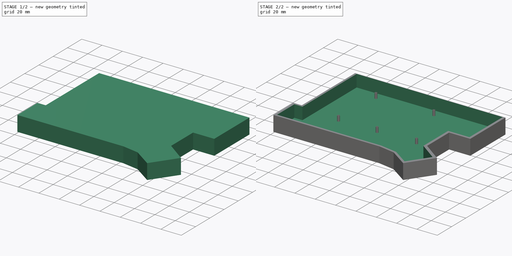
[diagram: build sequence overview — one tinted view per stage of 2, left to right]
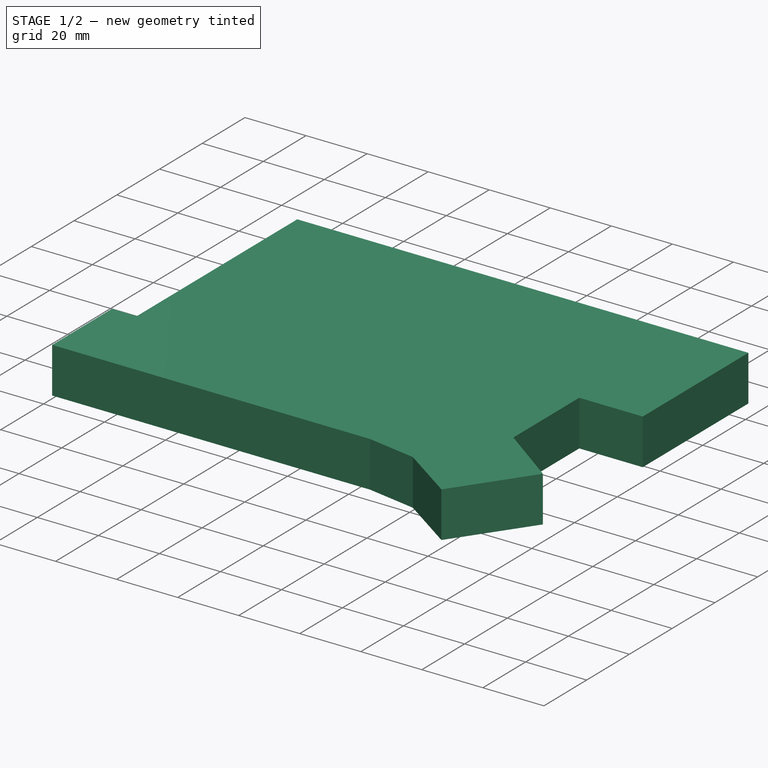
[diagram: stage 1 of 2 — iso view after this stage's code; geometry added in this stage tinted green]
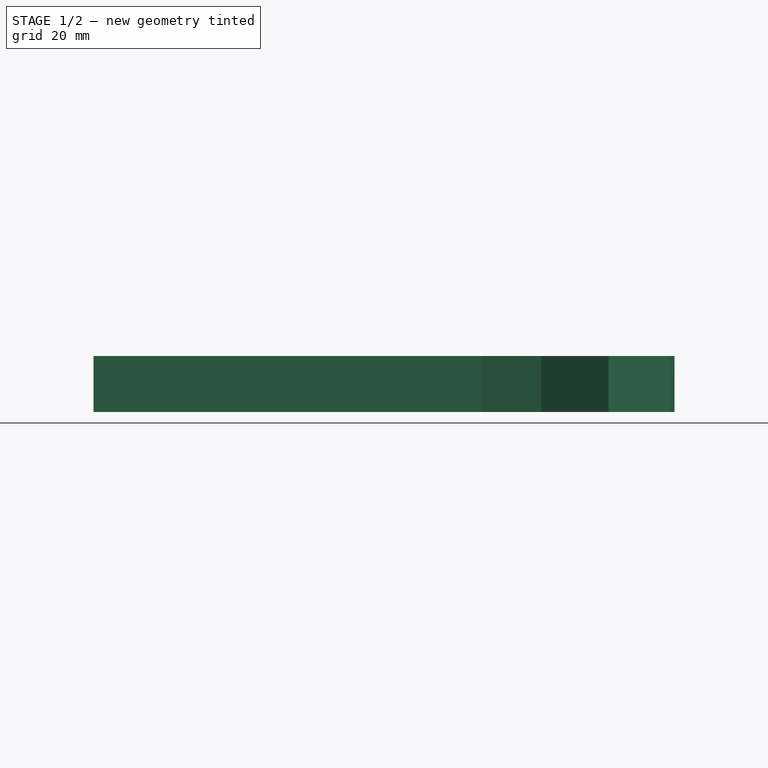
[diagram: stage 1 of 2 — front view after this stage's code; geometry added in this stage tinted green]
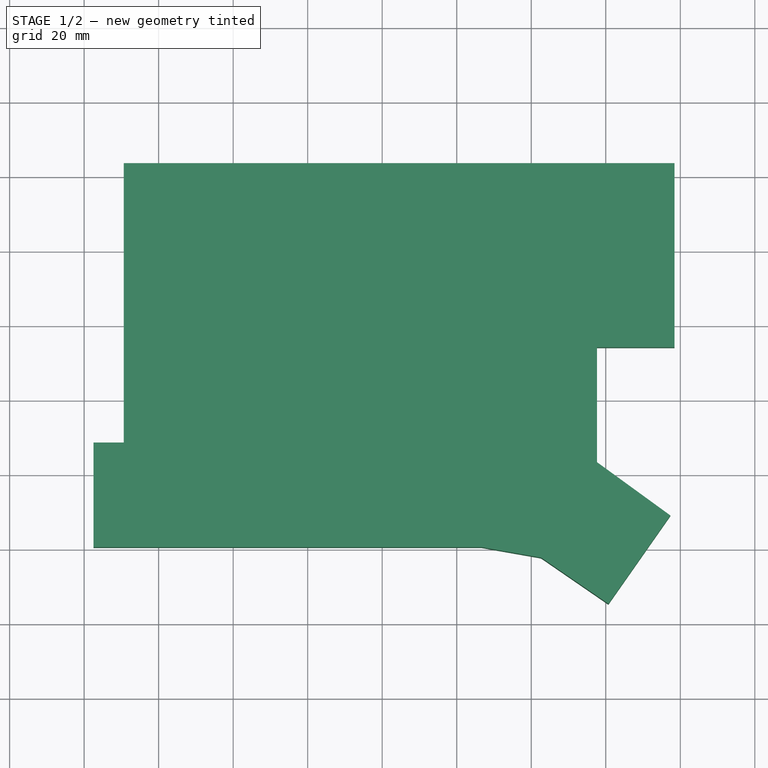
[diagram: stage 1 of 2 — top view after this stage's code; geometry added in this stage tinted green]
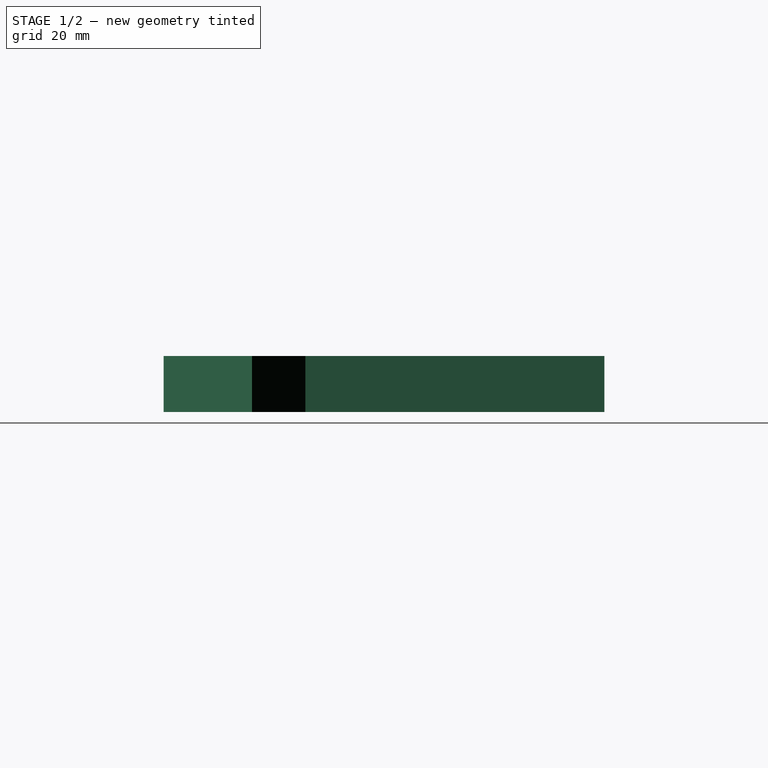
[diagram: stage 1 of 2 — right view after this stage's code; geometry added in this stage tinted green]
FCSTD DOCUMENT  (FreeCAD 1.0R39109 (Git))
Label: Left case
License: All rights reserved
LicenseURL: https://en.wikipedia.org/wiki/All_rights_reserved
objects: Sketcher::SketchObject×4, PartDesign::Body×2, Part::Feature×1, App::Part×1, PartDesign::Pad×1, PartDesign::Pocket×1, Part::Extrusion×1
note: 18 computed .brp shape members not serialized (recipe doc carries the construction recipe); baked Part::Feature solids carry a one-line shape summary decoded from their .brp

FEATURE [Part::Feature] Part__Feature089  label="_autosave-twintest_PCB"
  shape: bbox 138 x 111 x 1.6 mm, 519 faces (baked)
FEATURE [App::Part] twintest_1  label="twintest 1"
  Group = -> [Part__Feature089]
  Origin = -> Origin090
FEATURE [Sketcher::SketchObject] Sketch
  ArcFitTolerance = 1e-06
  AttachmentSupport = -> [XY_Plane]
  FullyConstrained = false
  MakeInternals = false
  MapMode = 5
  sketch-geometry (13):
    g0: LineSegment StartX=30.6373 StartY=-36.4181 StartZ=0 EndX=178.447 EndY=-36.4181 EndZ=0
    g1: LineSegment StartX=178.447 StartY=-36.4181 StartZ=0 EndX=178.447 EndY=-85.8481 EndZ=0
    g2: LineSegment StartX=178.447 StartY=-85.8481 StartZ=0 EndX=157.637 EndY=-85.8481 EndZ=0
    g3: LineSegment StartX=157.637 StartY=-85.8481 StartZ=0 EndX=157.637 EndY=-116.668 EndZ=0
    g4: LineSegment StartX=157.637 StartY=-116.668 StartZ=0 EndX=177.337 EndY=-130.981 EndZ=0
    g5: LineSegment StartX=177.337 StartY=-130.981 StartZ=0 EndX=160.714 EndY=-154.721 EndZ=0
    g6: LineSegment StartX=160.714 StartY=-154.721 StartZ=0 EndX=142.666 EndY=-142.316 EndZ=0
    g7: LineSegment StartX=142.666 StartY=-142.316 StartZ=0 EndX=126.656 EndY=-139.493 EndZ=0
    g8: LineSegment StartX=126.656 StartY=-139.493 StartZ=0 EndX=104.716 EndY=-139.493 EndZ=0
    g9: LineSegment StartX=104.716 StartY=-139.493 StartZ=0 EndX=22.5122 EndY=-139.493 EndZ=0
    g10: LineSegment StartX=30.6373 StartY=-36.4181 StartZ=0 EndX=30.6373 EndY=-111.418 EndZ=0
    g11: LineSegment StartX=22.5122 StartY=-139.493 StartZ=0 EndX=22.5122 EndY=-111.418 EndZ=0
    g12: LineSegment StartX=30.6373 StartY=-111.418 StartZ=0 EndX=22.5122 EndY=-111.418 EndZ=0
  constraints (36):
    c: Horizontal(g0)
    c: Vertical(g1)
    c: Coincident(g1,g0)
    c: Horizontal(g2)
    c: Coincident(g2,g1)
    c: Vertical(g3)
    c: Coincident(g3,g2)
    c: Angle(g-1,g4) = -0.628319
    c: Coincident(g4,g3)
    c: Angle(g-1,g5) = -2.18166
    c: Coincident(g5,g4)
    c: Angle(g-1,g6) = 2.53945
    c: Coincident(g6,g5)
    c: Angle(g-1,g7) = 2.96706
    c: Coincident(g7,g6)
    c: DistanceX(g7,g7) = 16.01
    c: Distance(g6,g6) = 21.9
    c: Horizontal(g8)
    c: Coincident(g8,g7)
    c: Horizontal(g9)
    c: Coincident(g9,g8)
    c: Vertical(g10)
    c: Coincident(g10,g0)
    c: DistanceY(g10,g10) = 75
    c: DistanceY(g1,g1) = 49.43
    c: DistanceX(g2,g2) = 20.81
    c: DistanceY(g3,g3) = 30.82
    c: Distance(g4,g4) = 24.35
    c: DistanceY(g5,g5) = 23.74
    c: DistanceX(g0,g0) = 147.81
    c: DistanceX(g8,g8) = 21.94
    c: Vertical(g11)
    c: Coincident(g11,g9)
    c: Horizontal(g12)
    c: Coincident(g12,g10)
    c: Coincident(g12,g11)
FEATURE [PartDesign::Pad] Pad
  Direction = (0,0,1)
  Length = 15
  Length2 = 10
  Profile = -> Sketch
  ReferenceAxis = -> Sketch [N_Axis]
  Refine = true
  Suppressed = false
  Type = 0
FEATURE [Sketcher::SketchObject] Sketch002
  ArcFitTolerance = 1e-06
  AttachmentSupport = -> [Pocket]
  FullyConstrained = false
  MakeInternals = false
  MapMode = 5
  Placement = pos=(0,0,3) rot=(0,0,1;0rad)
  sketch-geometry (12):
    g0: Circle CenterX=114.262 CenterY=-45.2366 CenterZ=0 NormalX=0 NormalY=0 NormalZ=1 AngleXU=0 Radius=1.15
    g1: Circle CenterX=114.262 CenterY=-45.2366 CenterZ=0 NormalX=0 NormalY=0 NormalZ=1 AngleXU=0 Radius=1
    g2: Circle CenterX=154.306 CenterY=-73.797 CenterZ=0 NormalX=0 NormalY=0 NormalZ=1 AngleXU=0 Radius=1.15
    g3: Circle CenterX=154.306 CenterY=-73.797 CenterZ=0 NormalX=0 NormalY=0 NormalZ=1 AngleXU=0 Radius=1
    g4: Circle CenterX=133.59 CenterY=-97.1499 CenterZ=0 NormalX=0 NormalY=0 NormalZ=1 AngleXU=0 Radius=1.15
    g5: Circle CenterX=133.59 CenterY=-97.1499 CenterZ=0 NormalX=0 NormalY=0 NormalZ=1 AngleXU=0 Radius=1
    g6: Circle CenterX=95.1478 CenterY=-97.6823 CenterZ=0 NormalX=0 NormalY=0 NormalZ=1 AngleXU=0 Radius=1.15
    g7: Circle CenterX=95.1478 CenterY=-97.6823 CenterZ=0 NormalX=0 NormalY=0 NormalZ=1 AngleXU=0 Radius=1
    g8: Circle CenterX=57.3362 CenterY=-97.7928 CenterZ=0 NormalX=0 NormalY=0 NormalZ=1 AngleXU=0 Radius=1.15
    g9: Circle CenterX=57.3362 CenterY=-97.7928 CenterZ=0 NormalX=0 NormalY=0 NormalZ=1 AngleXU=0 Radius=1
    g10: Circle CenterX=57.1999 CenterY=-45.049 CenterZ=0 NormalX=0 NormalY=0 NormalZ=1 AngleXU=0 Radius=1.15
    g11: Circle CenterX=57.1999 CenterY=-45.049 CenterZ=0 NormalX=0 NormalY=0 NormalZ=1 AngleXU=0 Radius=1
  constraints (18):
    c: Diameter(g0) = 2.3
    c: Diameter(g1) = 2
    c: Coincident(g1,g0)
    c: Diameter(g2) = 2.3
    c: Diameter(g3) = 2
    c: Coincident(g3,g2)
    c: Diameter(g4) = 2.3
    c: Diameter(g5) = 2
    c: Coincident(g5,g4)
    c: Diameter(g6) = 2.3
    c: Diameter(g7) = 2
    c: Coincident(g7,g6)
    c: Diameter(g8) = 2.3
    c: Diameter(g9) = 2
    c: Coincident(g9,g8)
    c: Diameter(g10) = 2.3
    c: Diameter(g11) = 2
    c: Coincident(g11,g10)
FEATURE [PartDesign::Body] Body
  AllowCompound = false
  Group = -> [Sketch,Sketch001,Pad,Pocket,Sketch002]
  Origin = -> Origin
  Tip = -> Pocket
FEATURE [Sketcher::SketchObject] Sketch003
  ArcFitTolerance = 1e-06
  AttachmentSupport = -> [XY_Plane091]
  FullyConstrained = false
  MakeInternals = false
  MapMode = 5
  sketch-geometry (2):
    g0: Circle CenterX=114.265 CenterY=-45.2405 CenterZ=0 NormalX=0 NormalY=0 NormalZ=1 AngleXU=0 Radius=1.1
    g1: Circle CenterX=154.3 CenterY=-73.786 CenterZ=0 NormalX=0 NormalY=0 NormalZ=1 AngleXU=0 Radius=1.1
  constraints (2):
    c: Diameter(g0) = 2.2
    c: Diameter(g1) = 2.2
FEATURE [PartDesign::Body] Body001
  AllowCompound = false
  Group = -> [Sketch003]
  Origin = -> Origin091
FEATURE [Part::Extrusion] Extrude
  Base = -> Sketch002
  Dir = (0,0,1)
  DirMode = 2
  FaceMakerClass = Part::FaceMakerBullseye
  FaceMakerMode = 3
  LengthFwd = 5
  LengthRev = 0
  Solid = true
  Symmetric = false
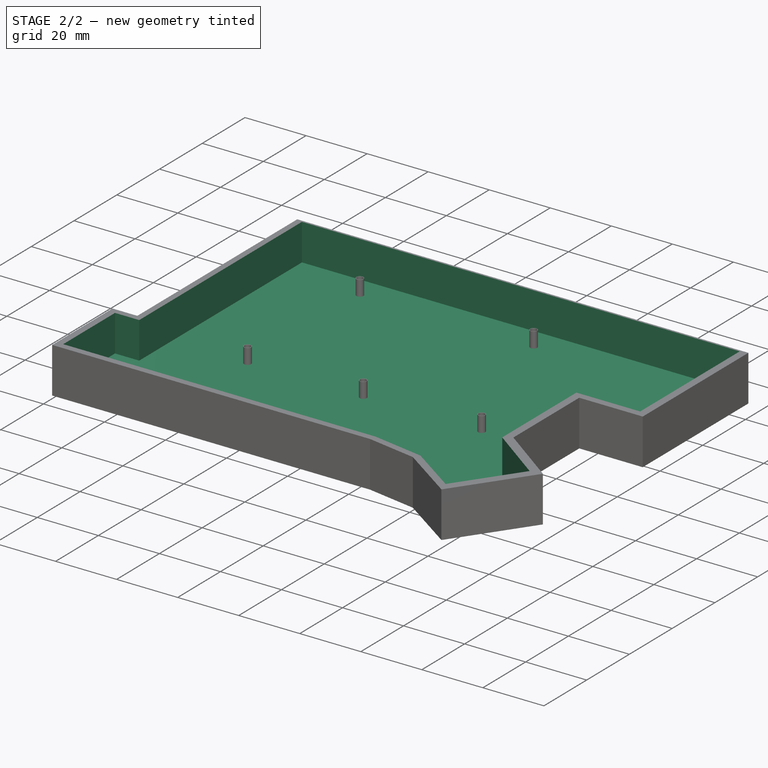
[diagram: stage 2 of 2 — iso view after this stage's code; geometry added in this stage tinted green]
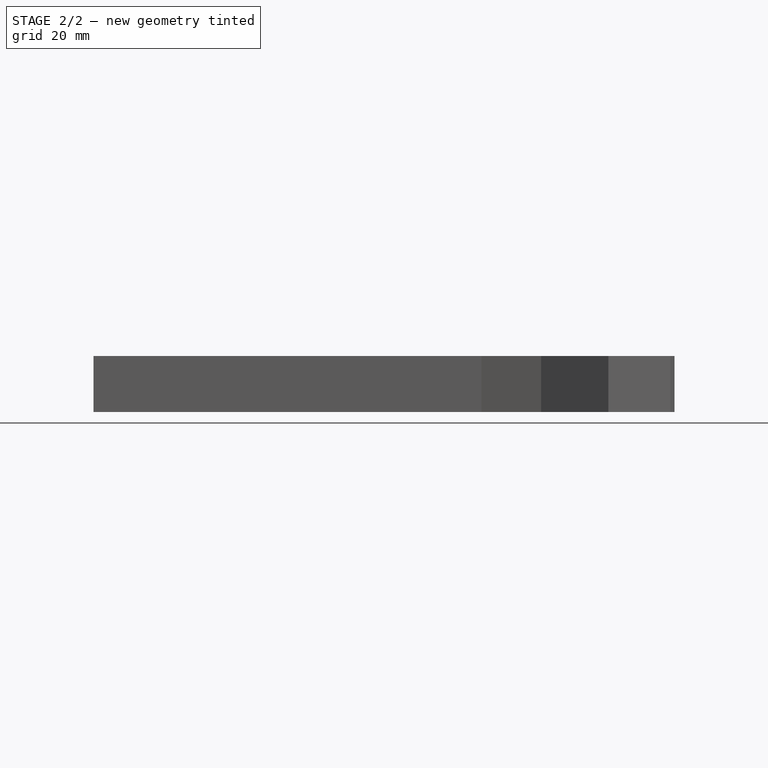
[diagram: stage 2 of 2 — front view after this stage's code; geometry added in this stage tinted green]
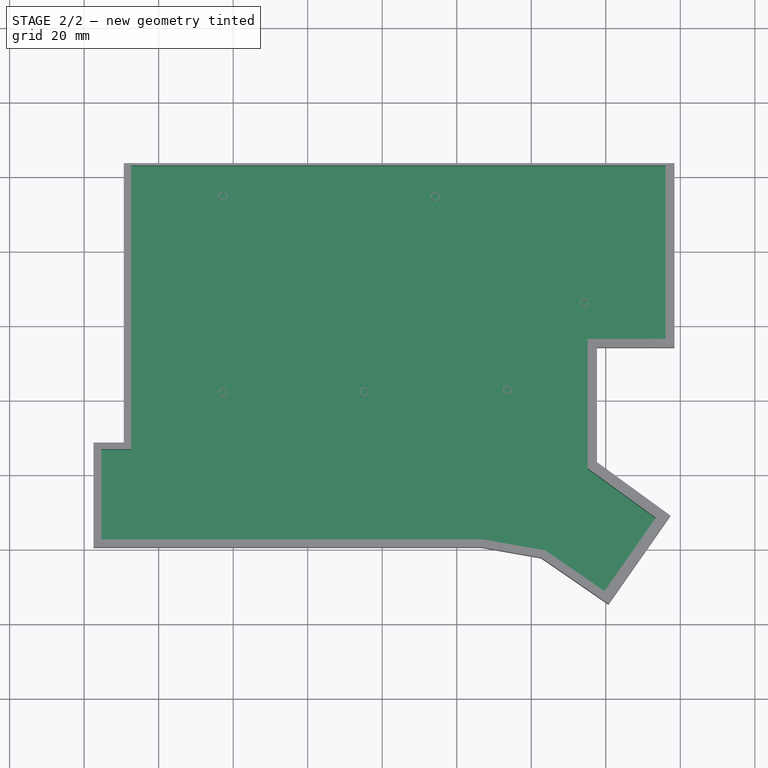
[diagram: stage 2 of 2 — top view after this stage's code; geometry added in this stage tinted green]
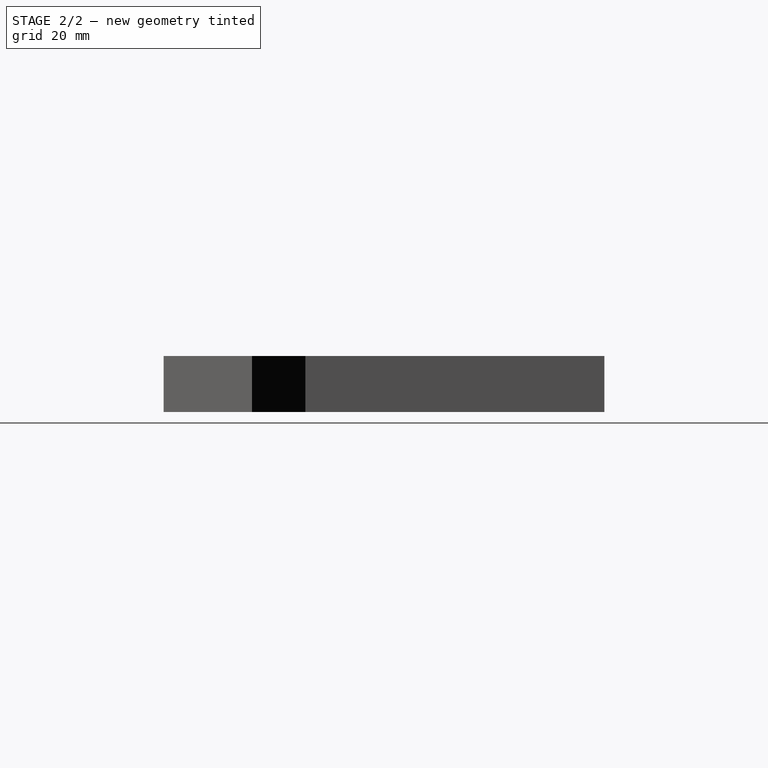
[diagram: stage 2 of 2 — right view after this stage's code; geometry added in this stage tinted green]
FEATURE [Sketcher::SketchObject] Sketch001
  ArcFitTolerance = 1e-06
  AttachmentOffset = pos=(0,0,15) rot=(0,0,1;0rad)
  AttachmentSupport = -> [Pad]
  FullyConstrained = false
  MakeInternals = false
  MapMode = 2
  Placement = pos=(0,0,15) rot=(0,0,1;0rad)
  sketch-geometry (13):
    g0: LineSegment StartX=32.6018 StartY=-37.0385 StartZ=0 EndX=176.025 EndY=-37.0385 EndZ=0
    g1: LineSegment StartX=176.025 StartY=-37.0385 StartZ=0 EndX=176.025 EndY=-83.5924 EndZ=0
    g2: LineSegment StartX=176.025 StartY=-83.5924 StartZ=0 EndX=155.13 EndY=-83.5924 EndZ=0
    g3: LineSegment StartX=155.13 StartY=-83.5924 StartZ=0 EndX=155.13 EndY=-118.313 EndZ=0
    g4: LineSegment StartX=155.13 StartY=-118.313 StartZ=0 EndX=173.416 EndY=-131.599 EndZ=0
    g5: LineSegment StartX=173.416 StartY=-131.599 StartZ=0 EndX=159.644 EndY=-151.267 EndZ=0
    g6: LineSegment StartX=159.644 StartY=-151.267 StartZ=0 EndX=143.769 EndY=-140.357 EndZ=0
    g7: LineSegment StartX=143.769 StartY=-140.357 StartZ=0 EndX=127.024 EndY=-137.404 EndZ=0
    g8: LineSegment StartX=127.024 StartY=-137.404 StartZ=0 EndX=104.758 EndY=-137.404 EndZ=0
    g9: LineSegment StartX=104.758 StartY=-137.404 StartZ=0 EndX=24.6735 EndY=-137.404 EndZ=0
    g10: LineSegment StartX=24.6735 StartY=-137.404 StartZ=0 EndX=24.6735 EndY=-113.174 EndZ=0
    g11: LineSegment StartX=24.6735 StartY=-113.174 StartZ=0 EndX=32.6018 EndY=-113.174 EndZ=0
    g12: LineSegment StartX=32.6018 StartY=-37.0385 StartZ=0 EndX=32.6018 EndY=-113.174 EndZ=0
  constraints (26):
    c: Horizontal(g0)
    c: Vertical(g1)
    c: Coincident(g1,g0)
    c: Horizontal(g2)
    c: Coincident(g2,g1)
    c: Vertical(g3)
    c: Coincident(g3,g2)
    c: Angle(g-1,g4) = -0.628319
    c: Coincident(g4,g3)
    c: Angle(g-1,g5) = -2.18166
    c: Coincident(g5,g4)
    c: Angle(g-1,g6) = 2.53945
    c: Coincident(g6,g5)
    c: Angle(g-1,g7) = 2.96706
    c: Coincident(g7,g6)
    c: Horizontal(g8)
    c: Coincident(g8,g7)
    c: Coincident(g9,g8)
    c: Horizontal(g9)
    c: Vertical(g10)
    c: Coincident(g10,g9)
    c: Horizontal(g11)
    c: Coincident(g11,g10)
    c: Vertical(g12)
    c: Coincident(g12,g0)
    c: Coincident(g12,g11)
FEATURE [PartDesign::Pocket] Pocket
  BaseFeature = -> Pad
  Direction = (0,0,-1)
  Length = 12
  Length2 = 5
  Profile = -> Sketch001
  ReferenceAxis = -> Sketch001 [N_Axis]
  Refine = true
  Suppressed = false
  Type = 0
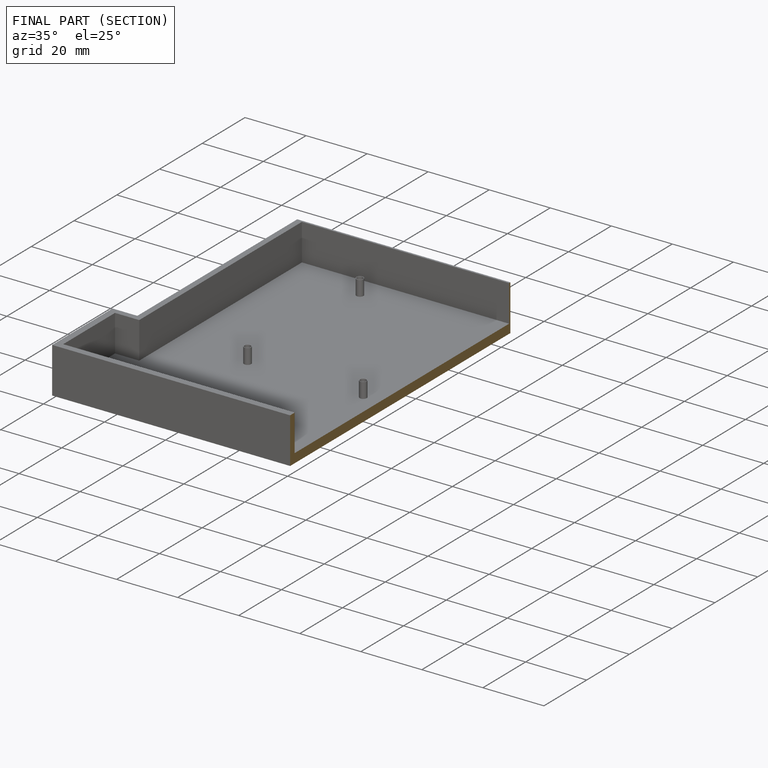
[diagram: finished part — half-section view (interior)]
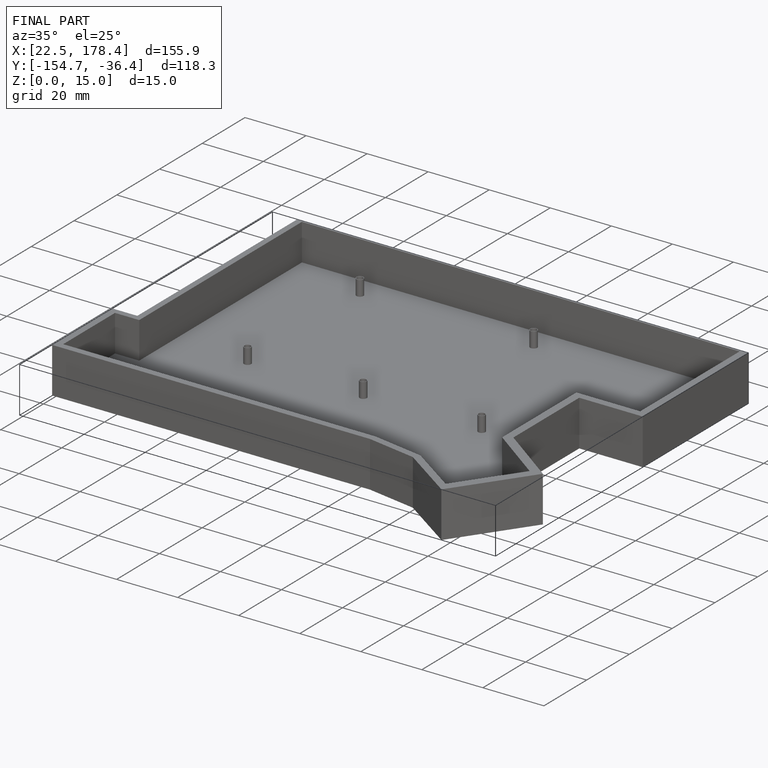
[diagram: finished part — iso view with bounding-box wireframe]
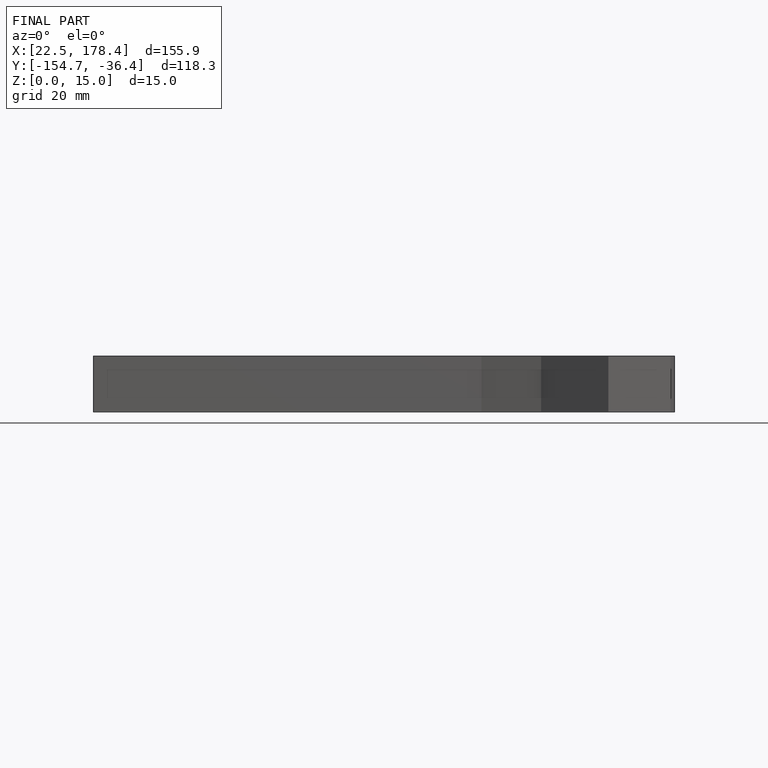
[diagram: finished part — front view with bounding-box wireframe]
